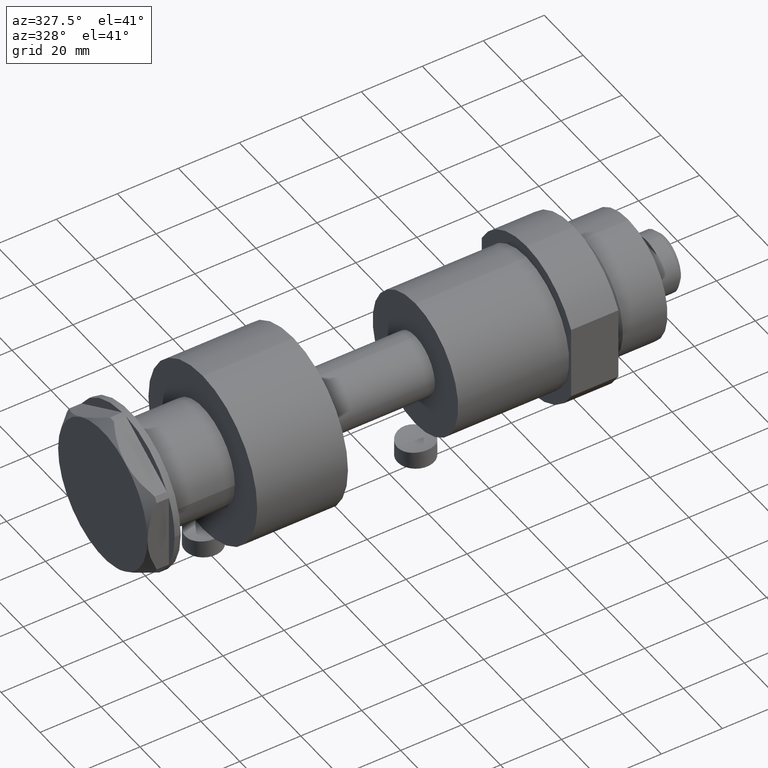
[diagram: clean part render]
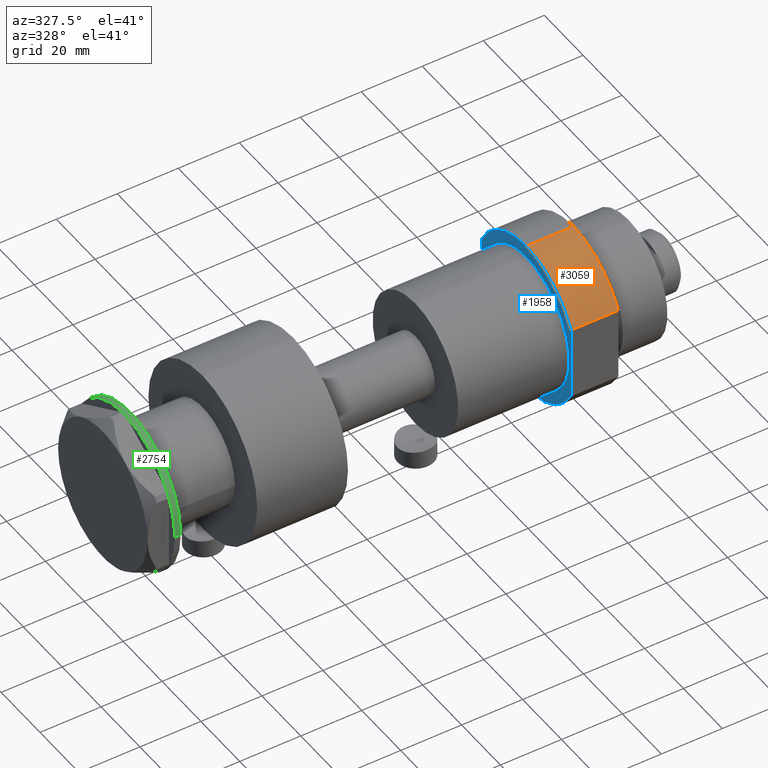
[diagram: same view with three faces highlighted in distinct colors, each labeled with its STEP entity id]
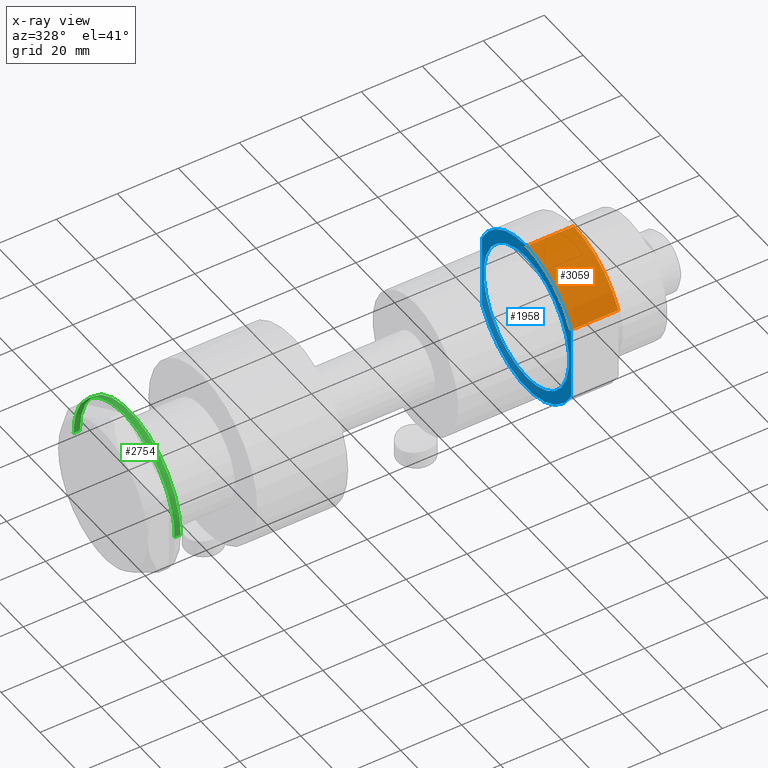
[diagram: x-ray of the same camera — body ghosted, the three highlighted faces saturated]
A machine part, auxiliary view with three faces highlighted in distinct colors.
The next image is the same camera in x-ray (body ghosted, the three faces saturated) — at least one of them is partly hidden behind the body in this view.
Their STEP definitions:

[orange] entity #3059 — the highlighted cylindrical surface (partial cylindrical patch) has radius 26 mm, axis along (-1, -0, 0).
#77 = CYLINDRICAL_SURFACE ( 'NONE', #3480, 26.00000000000000355 ) ;
#279 = VECTOR ( 'NONE', #2369, 1000.000000000000000 ) ;
#535 = ORIENTED_EDGE ( 'NONE', *, *, #2559, .T. ) ;
#594 = LINE ( 'NONE', #3097, #1804 ) ;
#622 = DIRECTION ( 'NONE',  ( 0.000000000000000000, 0.000000000000000000, 1.000000000000000000 ) ) ;
#695 = CARTESIAN_POINT ( 'NONE',  ( -26.00000000000000355, 0.000000000000000000, 15.50000000000000000 ) ) ;
#721 = CIRCLE ( 'NONE', #2456, 26.00000000000000355 ) ;
#728 = DIRECTION ( 'NONE',  ( -0.000000000000000000, -0.000000000000000000, -1.000000000000000000 ) ) ;
#775 = CARTESIAN_POINT ( 'NONE',  ( -26.00000000000000355, 0.000000000000000000, 15.50000000000000000 ) ) ;
#852 = DIRECTION ( 'NONE',  ( 1.000000000000000000, 0.000000000000000000, 0.000000000000000000 ) ) ;
#867 = EDGE_CURVE ( 'NONE', #1137, #2539, #2923, .T. ) ;
#870 = FACE_OUTER_BOUND ( 'NONE', #2375, .T. ) ;
#1014 = VERTEX_POINT ( 'NONE', #1628 ) ;
#1137 = VERTEX_POINT ( 'NONE', #775 ) ;
#1346 = ORIENTED_EDGE ( 'NONE', *, *, #867, .T. ) ;
#1537 = AXIS2_PLACEMENT_3D ( 'NONE', #2938, #2435, #2419 ) ;
#1628 = CARTESIAN_POINT ( 'NONE',  ( -12.12435565298215501, -22.99999999999999645, 0.000000000000000000 ) ) ;
#1709 = DIRECTION ( 'NONE',  ( -0.000000000000000000, -0.000000000000000000, 1.000000000000000000 ) ) ;
#1804 = VECTOR ( 'NONE', #1709, 1000.000000000000000 ) ;
#2118 = VERTEX_POINT ( 'NONE', #2338 ) ;
#2310 = CARTESIAN_POINT ( 'NONE',  ( 0.000000000000000000, 0.000000000000000000, 15.50000000000000000 ) ) ;
#2338 = CARTESIAN_POINT ( 'NONE',  ( -12.12435565298215323, -22.99999999999999645, 15.50000000000000000 ) ) ;
#2369 = DIRECTION ( 'NONE',  ( -0.000000000000000000, -0.000000000000000000, -1.000000000000000000 ) ) ;
#2375 = EDGE_LOOP ( 'NONE', ( #2834, #1346, #535, #3478 ) ) ;
#2404 = CARTESIAN_POINT ( 'NONE',  ( -26.00000000000000355, 0.000000000000000000, 0.000000000000000000 ) ) ;
#2419 = DIRECTION ( 'NONE',  ( 1.000000000000000000, 0.000000000000000000, 0.000000000000000000 ) ) ;
#2435 = DIRECTION ( 'NONE',  ( 0.000000000000000000, 0.000000000000000000, 1.000000000000000000 ) ) ;
#2456 = AXIS2_PLACEMENT_3D ( 'NONE', #2596, #622, #852 ) ;
#2539 = VERTEX_POINT ( 'NONE', #2404 ) ;
#2559 = EDGE_CURVE ( 'NONE', #2539, #1014, #3085, .T. ) ;
#2596 = CARTESIAN_POINT ( 'NONE',  ( 0.000000000000000000, 0.000000000000000000, 15.50000000000000000 ) ) ;
#2834 = ORIENTED_EDGE ( 'NONE', *, *, #2954, .F. ) ;
#2923 = LINE ( 'NONE', #695, #279 ) ;
#2938 = CARTESIAN_POINT ( 'NONE',  ( 0.000000000000000000, 0.000000000000000000, 0.000000000000000000 ) ) ;
#2954 = EDGE_CURVE ( 'NONE', #1137, #2118, #721, .T. ) ;
#2974 = DIRECTION ( 'NONE',  ( -1.000000000000000000, 0.000000000000000000, 0.000000000000000000 ) ) ;
#3059 = ADVANCED_FACE ( 'NONE', ( #870 ), #77, .T. ) ;
#3085 = CIRCLE ( 'NONE', #1537, 26.00000000000000355 ) ;
#3097 = CARTESIAN_POINT ( 'NONE',  ( -12.12435565298215145, -22.99999999999999645, 0.000000000000000000 ) ) ;
#3221 = EDGE_CURVE ( 'NONE', #1014, #2118, #594, .T. ) ;
#3478 = ORIENTED_EDGE ( 'NONE', *, *, #3221, .T. ) ;
#3480 = AXIS2_PLACEMENT_3D ( 'NONE', #2310, #728, #2974 ) ;

[blue] entity #1958 — the highlighted planar face has unit normal (1, 0, -0).
#155 = AXIS2_PLACEMENT_3D ( 'NONE', #1017, #2173, #2124 ) ;
#197 = CARTESIAN_POINT ( 'NONE',  ( 0.000000000000000000, 0.000000000000000000, 0.000000000000000000 ) ) ;
#210 = ORIENTED_EDGE ( 'NONE', *, *, #1140, .F. ) ;
#220 = VECTOR ( 'NONE', #2860, 1000.000000000000000 ) ;
#294 = EDGE_CURVE ( 'NONE', #3365, #1014, #1748, .T. ) ;
#412 = CIRCLE ( 'NONE', #1010, 22.00000000000000000 ) ;
#425 = CARTESIAN_POINT ( 'NONE',  ( -12.12435565298215145, 23.00000000000000355, 0.000000000000000000 ) ) ;
#444 = EDGE_CURVE ( 'NONE', #3361, #2855, #2360, .T. ) ;
#733 = VERTEX_POINT ( 'NONE', #2812 ) ;
#781 = VERTEX_POINT ( 'NONE', #3146 ) ;
#994 = ORIENTED_EDGE ( 'NONE', *, *, #3416, .F. ) ;
#1010 = AXIS2_PLACEMENT_3D ( 'NONE', #2893, #2303, #3408 ) ;
#1014 = VERTEX_POINT ( 'NONE', #1628 ) ;
#1017 = CARTESIAN_POINT ( 'NONE',  ( 0.000000000000000000, 0.000000000000000000, 0.000000000000000000 ) ) ;
#1062 = CIRCLE ( 'NONE', #1527, 26.00000000000000355 ) ;
#1116 = DIRECTION ( 'NONE',  ( 0.000000000000000000, 0.000000000000000000, 1.000000000000000000 ) ) ;
#1140 = EDGE_CURVE ( 'NONE', #3365, #2855, #1062, .T. ) ;
#1527 = AXIS2_PLACEMENT_3D ( 'NONE', #1891, #1116, #3576 ) ;
#1537 = AXIS2_PLACEMENT_3D ( 'NONE', #2938, #2435, #2419 ) ;
#1615 = EDGE_CURVE ( 'NONE', #781, #733, #3432, .T. ) ;
#1628 = CARTESIAN_POINT ( 'NONE',  ( -12.12435565298215501, -22.99999999999999645, 0.000000000000000000 ) ) ;
#1661 = CARTESIAN_POINT ( 'NONE',  ( 0.000000000000000000, 0.000000000000000000, 0.000000000000000000 ) ) ;
#1667 = ORIENTED_EDGE ( 'NONE', *, *, #1615, .F. ) ;
#1744 = EDGE_CURVE ( 'NONE', #733, #781, #412, .T. ) ;
#1748 = LINE ( 'NONE', #3369, #220 ) ;
#1760 = EDGE_LOOP ( 'NONE', ( #210, #2935, #3051, #994, #2063 ) ) ;
#1879 = FACE_BOUND ( 'NONE', #3468, .T. ) ;
#1891 = CARTESIAN_POINT ( 'NONE',  ( 0.000000000000000000, 0.000000000000000000, 0.000000000000000000 ) ) ;
#1958 = ADVANCED_FACE ( 'NONE', ( #1879, #2972 ), #3507, .F. ) ;
#2063 = ORIENTED_EDGE ( 'NONE', *, *, #444, .T. ) ;
#2124 = DIRECTION ( 'NONE',  ( 1.000000000000000000, 0.000000000000000000, 0.000000000000000000 ) ) ;
#2133 = CARTESIAN_POINT ( 'NONE',  ( 12.12435565298214080, 23.00000000000000355, 0.000000000000000000 ) ) ;
#2154 = CARTESIAN_POINT ( 'NONE',  ( -12.12435565298215145, 23.00000000000000355, 0.000000000000000000 ) ) ;
#2173 = DIRECTION ( 'NONE',  ( 0.000000000000000000, 0.000000000000000000, 1.000000000000000000 ) ) ;
#2303 = DIRECTION ( 'NONE',  ( 0.000000000000000000, 0.000000000000000000, -1.000000000000000000 ) ) ;
#2360 = LINE ( 'NONE', #425, #2388 ) ;
#2388 = VECTOR ( 'NONE', #2476, 1000.000000000000000 ) ;
#2404 = CARTESIAN_POINT ( 'NONE',  ( -26.00000000000000355, 0.000000000000000000, 0.000000000000000000 ) ) ;
#2419 = DIRECTION ( 'NONE',  ( 1.000000000000000000, 0.000000000000000000, 0.000000000000000000 ) ) ;
#2430 = DIRECTION ( 'NONE',  ( 1.000000000000000000, 0.000000000000000000, -0.000000000000000000 ) ) ;
#2435 = DIRECTION ( 'NONE',  ( 0.000000000000000000, 0.000000000000000000, 1.000000000000000000 ) ) ;
#2476 = DIRECTION ( 'NONE',  ( 1.000000000000000000, 0.000000000000000000, 0.000000000000000000 ) ) ;
#2486 = DIRECTION ( 'NONE',  ( 0.000000000000000000, 0.000000000000000000, -1.000000000000000000 ) ) ;
#2539 = VERTEX_POINT ( 'NONE', #2404 ) ;
#2546 = CIRCLE ( 'NONE', #155, 26.00000000000000355 ) ;
#2559 = EDGE_CURVE ( 'NONE', #2539, #1014, #3085, .T. ) ;
#2787 = AXIS2_PLACEMENT_3D ( 'NONE', #197, #3229, #2430 ) ;
#2812 = CARTESIAN_POINT ( 'NONE',  ( -22.00000000000000000, 2.694222958124176809E-15, 0.000000000000000000 ) ) ;
#2855 = VERTEX_POINT ( 'NONE', #2133 ) ;
#2860 = DIRECTION ( 'NONE',  ( -1.000000000000000000, -0.000000000000000000, -0.000000000000000000 ) ) ;
#2893 = CARTESIAN_POINT ( 'NONE',  ( 0.000000000000000000, 0.000000000000000000, 0.000000000000000000 ) ) ;
#2935 = ORIENTED_EDGE ( 'NONE', *, *, #294, .T. ) ;
#2938 = CARTESIAN_POINT ( 'NONE',  ( 0.000000000000000000, 0.000000000000000000, 0.000000000000000000 ) ) ;
#2972 = FACE_OUTER_BOUND ( 'NONE', #1760, .T. ) ;
#3051 = ORIENTED_EDGE ( 'NONE', *, *, #2559, .F. ) ;
#3085 = CIRCLE ( 'NONE', #1537, 26.00000000000000355 ) ;
#3146 = CARTESIAN_POINT ( 'NONE',  ( 22.00000000000000000, 0.000000000000000000, 0.000000000000000000 ) ) ;
#3229 = DIRECTION ( 'NONE',  ( 0.000000000000000000, 0.000000000000000000, 1.000000000000000000 ) ) ;
#3361 = VERTEX_POINT ( 'NONE', #2154 ) ;
#3365 = VERTEX_POINT ( 'NONE', #3483 ) ;
#3369 = CARTESIAN_POINT ( 'NONE',  ( -12.12435565298215145, -22.99999999999999645, 0.000000000000000000 ) ) ;
#3408 = DIRECTION ( 'NONE',  ( -1.000000000000000000, 0.000000000000000000, 0.000000000000000000 ) ) ;
#3416 = EDGE_CURVE ( 'NONE', #3361, #2539, #2546, .T. ) ;
#3420 = ORIENTED_EDGE ( 'NONE', *, *, #1744, .F. ) ;
#3432 = CIRCLE ( 'NONE', #3550, 22.00000000000000000 ) ;
#3468 = EDGE_LOOP ( 'NONE', ( #1667, #3420 ) ) ;
#3483 = CARTESIAN_POINT ( 'NONE',  ( 12.12435565298215323, -22.99999999999999645, 0.000000000000000000 ) ) ;
#3507 = PLANE ( 'NONE',  #2787 ) ;
#3550 = AXIS2_PLACEMENT_3D ( 'NONE', #1661, #2486, #3587 ) ;
#3576 = DIRECTION ( 'NONE',  ( 1.000000000000000000, 0.000000000000000000, 0.000000000000000000 ) ) ;
#3587 = DIRECTION ( 'NONE',  ( -1.000000000000000000, 0.000000000000000000, 0.000000000000000000 ) ) ;

[green] entity #2754 — the highlighted cylindrical surface (partial cylindrical patch) has radius 26 mm, axis along (-1, -0, 0).
#40 = DIRECTION ( 'NONE',  ( 0.000000000000000000, 0.000000000000000000, -1.000000000000000000 ) ) ;
#64 = DIRECTION ( 'NONE',  ( -1.000000000000000000, 0.000000000000000000, 0.000000000000000000 ) ) ;
#87 = CARTESIAN_POINT ( 'NONE',  ( 0.000000000000000000, 0.000000000000000000, 0.000000000000000000 ) ) ;
#96 = CARTESIAN_POINT ( 'NONE',  ( 0.000000000000000000, 0.000000000000000000, 0.000000000000000000 ) ) ;
#154 = CARTESIAN_POINT ( 'NONE',  ( 22.67167229899276393, -12.72773645103811901, 0.000000000000000000 ) ) ;
#160 = CARTESIAN_POINT ( 'NONE',  ( -0.3132930502233332581, -25.99811238272274494, 0.000000000000000000 ) ) ;
#177 = B_SPLINE_CURVE_WITH_KNOTS ( 'NONE', 3,
 ( #1362, #960, #3565, #3289 ),
 .UNSPECIFIED., .F., .F.,
 ( 4, 4 ),
 ( 0.000000000000000000, 1.000000000000000000 ),
 .UNSPECIFIED. ) ;
#191 = EDGE_CURVE ( 'NONE', #1806, #2380, #526, .T. ) ;
#199 = DIRECTION ( 'NONE',  ( -1.000000000000000000, 0.000000000000000000, 0.000000000000000000 ) ) ;
#238 = AXIS2_PLACEMENT_3D ( 'NONE', #1467, #2569, #2352 ) ;
#244 = ORIENTED_EDGE ( 'NONE', *, *, #785, .F. ) ;
#283 = CIRCLE ( 'NONE', #1591, 26.00000000000000355 ) ;
#296 = CARTESIAN_POINT ( 'NONE',  ( 0.000000000000000000, 0.000000000000000000, 0.000000000000000000 ) ) ;
#299 = ORIENTED_EDGE ( 'NONE', *, *, #2815, .T. ) ;
#383 = DIRECTION ( 'NONE',  ( 0.000000000000000000, 0.000000000000000000, -1.000000000000000000 ) ) ;
#414 = DIRECTION ( 'NONE',  ( 0.000000000000000000, 0.000000000000000000, -1.000000000000000000 ) ) ;
#419 = AXIS2_PLACEMENT_3D ( 'NONE', #96, #2808, #3379 ) ;
#490 = EDGE_CURVE ( 'NONE', #1739, #1446, #1553, .T. ) ;
#498 = ORIENTED_EDGE ( 'NONE', *, *, #1097, .T. ) ;
#499 = CARTESIAN_POINT ( 'NONE',  ( 0.3132930502237983306, -25.99811238272274139, 0.000000000000000000 ) ) ;
#526 = CIRCLE ( 'NONE', #2613, 26.00000000000000355 ) ;
#532 = EDGE_CURVE ( 'NONE', #1344, #3516, #177, .T. ) ;
#542 = CARTESIAN_POINT ( 'NONE',  ( 26.00000000000000355, 0.000000000000000000, 0.000000000000000000 ) ) ;
#570 = ORIENTED_EDGE ( 'NONE', *, *, #1788, .T. ) ;
#577 = DIRECTION ( 'NONE',  ( -1.000000000000000000, 0.000000000000000000, 0.000000000000000000 ) ) ;
#578 = FACE_OUTER_BOUND ( 'NONE', #2671, .T. ) ;
#590 = ORIENTED_EDGE ( 'NONE', *, *, #1564, .T. ) ;
#602 = CIRCLE ( 'NONE', #2217, 26.00000000000000355 ) ;
#637 = B_SPLINE_CURVE_WITH_KNOTS ( 'NONE', 3,
 ( #499, #1620, #3275, #160 ),
 .UNSPECIFIED., .F., .F.,
 ( 4, 4 ),
 ( 0.000000000000000000, 1.000000000000000000 ),
 .UNSPECIFIED. ) ;
#645 = ORIENTED_EDGE ( 'NONE', *, *, #532, .T. ) ;
#650 = CIRCLE ( 'NONE', #1644, 26.00000000000000355 ) ;
#679 = CARTESIAN_POINT ( 'NONE',  ( 0.000000000000000000, 0.000000000000000000, -2.000000000000000000 ) ) ;
#710 = CARTESIAN_POINT ( 'NONE',  ( -26.00000000000000355, 3.184081677783118585E-15, 0.000000000000000000 ) ) ;
#717 = CIRCLE ( 'NONE', #2573, 26.00000000000000355 ) ;
#723 = CARTESIAN_POINT ( 'NONE',  ( -0.9999999999997406519, -25.98076211353317433, 0.000000000000000000 ) ) ;
#785 = EDGE_CURVE ( 'NONE', #1451, #1739, #1405, .T. ) ;
#789 = CARTESIAN_POINT ( 'NONE',  ( 22.46498481720472640, -13.09076325594760881, 0.000000000000000000 ) ) ;
#822 = CIRCLE ( 'NONE', #1001, 26.00000000000000355 ) ;
#892 = EDGE_CURVE ( 'NONE', #2848, #3274, #650, .T. ) ;
#911 = CARTESIAN_POINT ( 'NONE',  ( 22.67167229899276393, -12.72773645103811901, 0.000000000000000000 ) ) ;
#941 = EDGE_CURVE ( 'NONE', #3192, #1446, #2676, .T. ) ;
#960 = CARTESIAN_POINT ( 'NONE',  ( -22.46498481720448481, -13.09076325594801915, 0.000000000000000000 ) ) ;
#1001 = AXIS2_PLACEMENT_3D ( 'NONE', #1846, #1611, #199 ) ;
#1027 = CARTESIAN_POINT ( 'NONE',  ( 1.000000000000106803, -25.98076211353316367, 0.000000000000000000 ) ) ;
#1044 = ORIENTED_EDGE ( 'NONE', *, *, #490, .F. ) ;
#1061 = CARTESIAN_POINT ( 'NONE',  ( 26.00000000000000355, 0.000000000000000000, -2.000000000000000000 ) ) ;
#1095 = DIRECTION ( 'NONE',  ( -0.000000000000000000, -0.000000000000000000, 1.000000000000000000 ) ) ;
#1097 = EDGE_CURVE ( 'NONE', #1234, #3038, #2256, .T. ) ;
#1178 = DIRECTION ( 'NONE',  ( 0.000000000000000000, 0.000000000000000000, -1.000000000000000000 ) ) ;
#1234 = VERTEX_POINT ( 'NONE', #911 ) ;
#1255 = DIRECTION ( 'NONE',  ( -1.000000000000000000, 0.000000000000000000, 0.000000000000000000 ) ) ;
#1284 = EDGE_CURVE ( 'NONE', #1451, #3239, #1752, .T. ) ;
#1289 = DIRECTION ( 'NONE',  ( 0.000000000000000000, 0.000000000000000000, -1.000000000000000000 ) ) ;
#1310 = DIRECTION ( 'NONE',  ( -1.000000000000000000, 0.000000000000000000, 0.000000000000000000 ) ) ;
#1344 = VERTEX_POINT ( 'NONE', #3412 ) ;
#1362 = CARTESIAN_POINT ( 'NONE',  ( -22.35837924876856064, -13.27037593168466501, 0.000000000000000000 ) ) ;
#1405 = CIRCLE ( 'NONE', #2502, 26.00000000000000355 ) ;
#1430 = EDGE_CURVE ( 'NONE', #3482, #2848, #822, .T. ) ;
#1446 = VERTEX_POINT ( 'NONE', #710 ) ;
#1451 = VERTEX_POINT ( 'NONE', #1061 ) ;
#1467 = CARTESIAN_POINT ( 'NONE',  ( 0.000000000000000000, 0.000000000000000000, 0.000000000000000000 ) ) ;
#1532 = DIRECTION ( 'NONE',  ( -1.000000000000000000, 0.000000000000000000, 0.000000000000000000 ) ) ;
#1538 = CARTESIAN_POINT ( 'NONE',  ( 26.00000000000000355, 0.000000000000000000, -2.000000000000000000 ) ) ;
#1553 = LINE ( 'NONE', #2105, #2961 ) ;
#1564 = EDGE_CURVE ( 'NONE', #2871, #1344, #283, .T. ) ;
#1591 = AXIS2_PLACEMENT_3D ( 'NONE', #1975, #1960, #577 ) ;
#1611 = DIRECTION ( 'NONE',  ( 0.000000000000000000, 0.000000000000000000, -1.000000000000000000 ) ) ;
#1620 = CARTESIAN_POINT ( 'NONE',  ( 0.1044411259765475330, -26.00062917530480533, 0.000000000000000000 ) ) ;
#1644 = AXIS2_PLACEMENT_3D ( 'NONE', #3417, #1811, #64 ) ;
#1708 = CIRCLE ( 'NONE', #238, 26.00000000000000355 ) ;
#1721 = CARTESIAN_POINT ( 'NONE',  ( 0.000000000000000000, 0.000000000000000000, 0.000000000000000000 ) ) ;
#1739 = VERTEX_POINT ( 'NONE', #2052 ) ;
#1752 = LINE ( 'NONE', #1538, #2906 ) ;
#1788 = EDGE_CURVE ( 'NONE', #2380, #2871, #3082, .T. ) ;
#1806 = VERTEX_POINT ( 'NONE', #3168 ) ;
#1808 = DIRECTION ( 'NONE',  ( -0.000000000000000000, -0.000000000000000000, 1.000000000000000000 ) ) ;
#1811 = DIRECTION ( 'NONE',  ( 0.000000000000000000, 0.000000000000000000, -1.000000000000000000 ) ) ;
#1846 = CARTESIAN_POINT ( 'NONE',  ( 0.000000000000000000, 0.000000000000000000, 0.000000000000000000 ) ) ;
#1849 = CARTESIAN_POINT ( 'NONE',  ( 22.35837924876885907, -13.27037593168416407, 0.000000000000000000 ) ) ;
#1855 = ORIENTED_EDGE ( 'NONE', *, *, #2838, .T. ) ;
#1954 = ORIENTED_EDGE ( 'NONE', *, *, #191, .T. ) ;
#1960 = DIRECTION ( 'NONE',  ( 0.000000000000000000, 0.000000000000000000, -1.000000000000000000 ) ) ;
#1975 = CARTESIAN_POINT ( 'NONE',  ( 0.000000000000000000, 0.000000000000000000, 0.000000000000000000 ) ) ;
#2052 = CARTESIAN_POINT ( 'NONE',  ( -26.00000000000000355, 3.184081677783118585E-15, -2.000000000000000000 ) ) ;
#2054 = ORIENTED_EDGE ( 'NONE', *, *, #2223, .T. ) ;
#2098 = AXIS2_PLACEMENT_3D ( 'NONE', #3014, #1289, #1310 ) ;
#2102 = ORIENTED_EDGE ( 'NONE', *, *, #892, .T. ) ;
#2105 = CARTESIAN_POINT ( 'NONE',  ( -26.00000000000000355, 3.184081677783118585E-15, -2.000000000000000000 ) ) ;
#2125 = DIRECTION ( 'NONE',  ( -0.000000000000000000, -0.000000000000000000, 1.000000000000000000 ) ) ;
#2217 = AXIS2_PLACEMENT_3D ( 'NONE', #1721, #1178, #2276 ) ;
#2223 = EDGE_CURVE ( 'NONE', #3239, #3200, #717, .T. ) ;
#2237 = CARTESIAN_POINT ( 'NONE',  ( 23.00000000000007461, -12.12435565298200224, 0.000000000000000000 ) ) ;
#2245 = DIRECTION ( 'NONE',  ( -1.000000000000000000, 0.000000000000000000, 0.000000000000000000 ) ) ;
#2256 = B_SPLINE_CURVE_WITH_KNOTS ( 'NONE', 3,
 ( #154, #3513, #789, #1849 ),
 .UNSPECIFIED., .F., .F.,
 ( 4, 4 ),
 ( 0.000000000000000000, 1.000000000000000000 ),
 .UNSPECIFIED. ) ;
#2276 = DIRECTION ( 'NONE',  ( -1.000000000000000000, 0.000000000000000000, 0.000000000000000000 ) ) ;
#2301 = DIRECTION ( 'NONE',  ( -1.000000000000000000, 0.000000000000000000, 0.000000000000000000 ) ) ;
#2352 = DIRECTION ( 'NONE',  ( -1.000000000000000000, 0.000000000000000000, 0.000000000000000000 ) ) ;
#2353 = ORIENTED_EDGE ( 'NONE', *, *, #1430, .T. ) ;
#2380 = VERTEX_POINT ( 'NONE', #723 ) ;
#2502 = AXIS2_PLACEMENT_3D ( 'NONE', #679, #414, #1255 ) ;
#2569 = DIRECTION ( 'NONE',  ( 0.000000000000000000, 0.000000000000000000, -1.000000000000000000 ) ) ;
#2573 = AXIS2_PLACEMENT_3D ( 'NONE', #87, #2872, #2301 ) ;
#2613 = AXIS2_PLACEMENT_3D ( 'NONE', #296, #40, #2245 ) ;
#2629 = AXIS2_PLACEMENT_3D ( 'NONE', #3031, #1095, #3319 ) ;
#2671 = EDGE_LOOP ( 'NONE', ( #1044, #244, #3519, #2054, #1855, #498, #2856, #2353, #2102, #3092, #1954, #570, #590, #645, #299, #2799 ) ) ;
#2676 = CIRCLE ( 'NONE', #2098, 26.00000000000000355 ) ;
#2754 = ADVANCED_FACE ( 'NONE', ( #578 ), #3350, .T. ) ;
#2799 = ORIENTED_EDGE ( 'NONE', *, *, #941, .T. ) ;
#2808 = DIRECTION ( 'NONE',  ( 0.000000000000000000, 0.000000000000000000, -1.000000000000000000 ) ) ;
#2815 = EDGE_CURVE ( 'NONE', #3516, #3192, #602, .T. ) ;
#2838 = EDGE_CURVE ( 'NONE', #3200, #1234, #1708, .T. ) ;
#2848 = VERTEX_POINT ( 'NONE', #1027 ) ;
#2856 = ORIENTED_EDGE ( 'NONE', *, *, #2931, .T. ) ;
#2871 = VERTEX_POINT ( 'NONE', #3284 ) ;
#2872 = DIRECTION ( 'NONE',  ( 0.000000000000000000, 0.000000000000000000, -1.000000000000000000 ) ) ;
#2874 = CARTESIAN_POINT ( 'NONE',  ( 0.000000000000000000, 0.000000000000000000, 0.000000000000000000 ) ) ;
#2906 = VECTOR ( 'NONE', #1808, 1000.000000000000000 ) ;
#2931 = EDGE_CURVE ( 'NONE', #3038, #3482, #3321, .T. ) ;
#2961 = VECTOR ( 'NONE', #2125, 1000.000000000000000 ) ;
#2971 = AXIS2_PLACEMENT_3D ( 'NONE', #2874, #383, #1532 ) ;
#3014 = CARTESIAN_POINT ( 'NONE',  ( 0.000000000000000000, 0.000000000000000000, 0.000000000000000000 ) ) ;
#3031 = CARTESIAN_POINT ( 'NONE',  ( 0.000000000000000000, 0.000000000000000000, -2.000000000000000000 ) ) ;
#3038 = VERTEX_POINT ( 'NONE', #3143 ) ;
#3052 = CARTESIAN_POINT ( 'NONE',  ( -22.67167229899264669, -12.72773645103832507, 0.000000000000000000 ) ) ;
#3056 = CARTESIAN_POINT ( 'NONE',  ( -22.99999999999990763, -12.12435565298232021, 0.000000000000000000 ) ) ;
#3082 = CIRCLE ( 'NONE', #2971, 26.00000000000000355 ) ;
#3092 = ORIENTED_EDGE ( 'NONE', *, *, #3396, .T. ) ;
#3143 = CARTESIAN_POINT ( 'NONE',  ( 22.35837924876885907, -13.27037593168416407, 0.000000000000000000 ) ) ;
#3168 = CARTESIAN_POINT ( 'NONE',  ( -0.3132930502233332581, -25.99811238272274494, 0.000000000000000000 ) ) ;
#3192 = VERTEX_POINT ( 'NONE', #3056 ) ;
#3200 = VERTEX_POINT ( 'NONE', #2237 ) ;
#3239 = VERTEX_POINT ( 'NONE', #542 ) ;
#3274 = VERTEX_POINT ( 'NONE', #3569 ) ;
#3275 = CARTESIAN_POINT ( 'NONE',  ( -0.1044411259760951866, -26.00062917530480888, 0.000000000000000000 ) ) ;
#3284 = CARTESIAN_POINT ( 'NONE',  ( -21.99999999999998224, -13.85640646055105485, 0.000000000000000000 ) ) ;
#3289 = CARTESIAN_POINT ( 'NONE',  ( -22.67167229899264669, -12.72773645103832507, 0.000000000000000000 ) ) ;
#3319 = DIRECTION ( 'NONE',  ( 1.000000000000000000, 0.000000000000000000, 0.000000000000000000 ) ) ;
#3321 = CIRCLE ( 'NONE', #419, 26.00000000000000355 ) ;
#3350 = CYLINDRICAL_SURFACE ( 'NONE', #2629, 26.00000000000000355 ) ;
#3379 = DIRECTION ( 'NONE',  ( -1.000000000000000000, 0.000000000000000000, 0.000000000000000000 ) ) ;
#3396 = EDGE_CURVE ( 'NONE', #3274, #1806, #637, .T. ) ;
#3412 = CARTESIAN_POINT ( 'NONE',  ( -22.35837924876856064, -13.27037593168466501, 0.000000000000000000 ) ) ;
#3417 = CARTESIAN_POINT ( 'NONE',  ( 0.000000000000000000, 0.000000000000000000, 0.000000000000000000 ) ) ;
#3482 = VERTEX_POINT ( 'NONE', #3584 ) ;
#3513 = CARTESIAN_POINT ( 'NONE',  ( 22.56942594318115525, -12.90986591935672401, 0.000000000000000000 ) ) ;
#3516 = VERTEX_POINT ( 'NONE', #3052 ) ;
#3519 = ORIENTED_EDGE ( 'NONE', *, *, #1284, .T. ) ;
#3565 = CARTESIAN_POINT ( 'NONE',  ( -22.56942594318098116, -12.90986591935703665, 0.000000000000000000 ) ) ;
#3569 = CARTESIAN_POINT ( 'NONE',  ( 0.3132930502237983306, -25.99811238272274139, 0.000000000000000000 ) ) ;
#3584 = CARTESIAN_POINT ( 'NONE',  ( 22.00000000000017053, -13.85640646055075464, 0.000000000000000000 ) ) ;